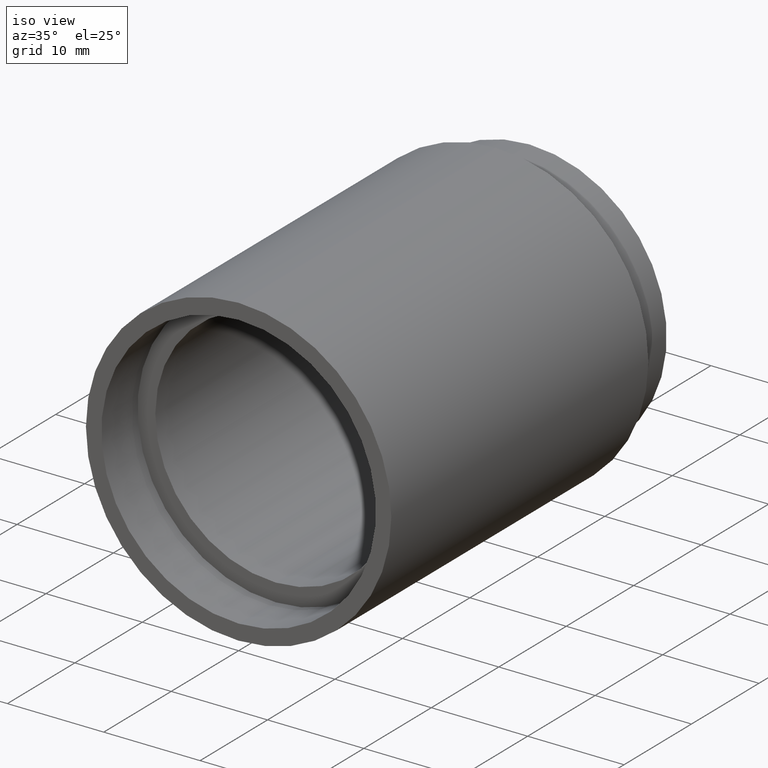
[diagram: clean part render]
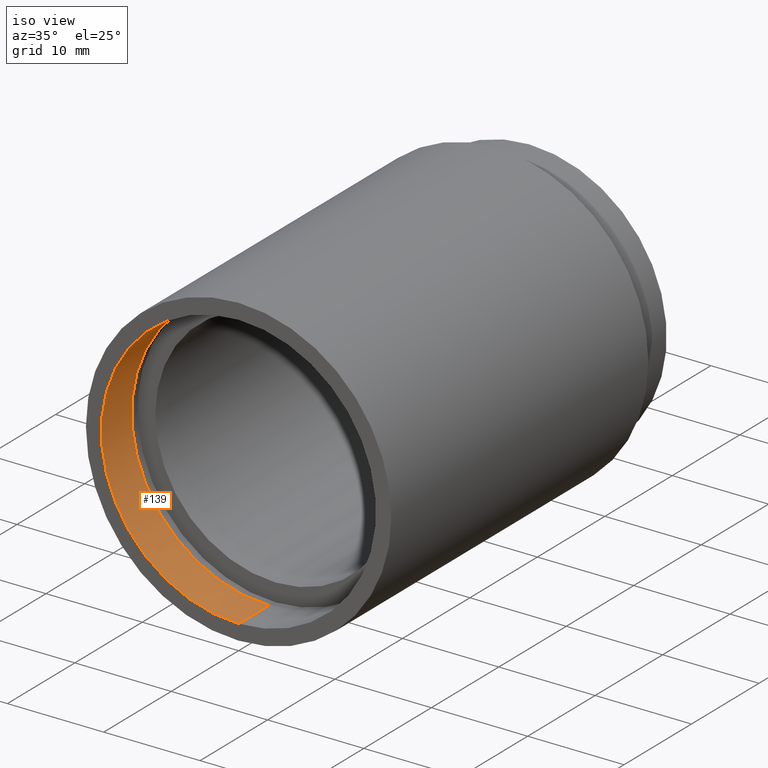
[diagram: same view with one face highlighted and labeled with its STEP entity id]
A machine part, iso view. The second image highlights one B-rep face of the part: STEP entity #139.
In plain terms, the highlighted cylindrical surface (partial cylindrical patch) has radius 14.25 mm, axis along (-0, 1, -0).
Its self-contained STEP definition (entity closure, byte-faithful):
#8 = VECTOR ( 'NONE', #460, 1000.000000000000000 ) ;
#16 = ORIENTED_EDGE ( 'NONE', *, *, #443, .F. ) ;
#22 = CARTESIAN_POINT ( 'NONE',  ( 0.0000000000000000000, 4.500000000000032000, 0.0000000000000000000 ) ) ;
#59 = CARTESIAN_POINT ( 'NONE',  ( 0.0000000000000000000, 2.775557561562891400E-014, 14.25000000000000000 ) ) ;
#78 = VERTEX_POINT ( 'NONE', #59 ) ;
#94 = ORIENTED_EDGE ( 'NONE', *, *, #154, .T. ) ;
#105 = DIRECTION ( 'NONE',  ( -0.0000000000000000000, 1.000000000000000000, -0.0000000000000000000 ) ) ;
#121 = EDGE_LOOP ( 'NONE', ( #16, #200, #94, #543 ) ) ;
#139 = ADVANCED_FACE ( 'NONE', ( #251 ), #242, .F. ) ;
#154 = EDGE_CURVE ( 'NONE', #308, #430, #495, .T. ) ;
#169 = DIRECTION ( 'NONE',  ( -0.0000000000000000000, 1.000000000000000000, -0.0000000000000000000 ) ) ;
#179 = CARTESIAN_POINT ( 'NONE',  ( 1.745121688784978200E-015, 4.500000000000032000, -14.25000000000000000 ) ) ;
#200 = ORIENTED_EDGE ( 'NONE', *, *, #293, .T. ) ;
#204 = LINE ( 'NONE', #417, #8 ) ;
#215 = DIRECTION ( 'NONE',  ( -0.0000000000000000000, 1.000000000000000000, -0.0000000000000000000 ) ) ;
#231 = LINE ( 'NONE', #514, #331 ) ;
#242 = CYLINDRICAL_SURFACE ( 'NONE', #507, 14.25000000000000000 ) ;
#251 = FACE_OUTER_BOUND ( 'NONE', #121, .T. ) ;
#271 = DIRECTION ( 'NONE',  ( 0.0000000000000000000, 0.0000000000000000000, 1.000000000000000000 ) ) ;
#293 = EDGE_CURVE ( 'NONE', #557, #308, #204, .T. ) ;
#308 = VERTEX_POINT ( 'NONE', #179 ) ;
#331 = VECTOR ( 'NONE', #215, 1000.000000000000000 ) ;
#368 = CARTESIAN_POINT ( 'NONE',  ( 0.0000000000000000000, 2.775557561562891400E-014, 0.0000000000000000000 ) ) ;
#388 = CARTESIAN_POINT ( 'NONE',  ( 0.0000000000000000000, 161.3761669434274500, 0.0000000000000000000 ) ) ;
#410 = EDGE_CURVE ( 'NONE', #78, #430, #231, .T. ) ;
#417 = CARTESIAN_POINT ( 'NONE',  ( 1.745121688784978200E-015, 161.3761669434274500, -14.25000000000000000 ) ) ;
#418 = DIRECTION ( 'NONE',  ( -0.0000000000000000000, 1.000000000000000000, -0.0000000000000000000 ) ) ;
#430 = VERTEX_POINT ( 'NONE', #503 ) ;
#443 = EDGE_CURVE ( 'NONE', #557, #78, #475, .T. ) ;
#455 = AXIS2_PLACEMENT_3D ( 'NONE', #368, #418, #271 ) ;
#460 = DIRECTION ( 'NONE',  ( -0.0000000000000000000, 1.000000000000000000, -0.0000000000000000000 ) ) ;
#475 = CIRCLE ( 'NONE', #455, 14.25000000000000000 ) ;
#495 = CIRCLE ( 'NONE', #550, 14.25000000000000000 ) ;
#503 = CARTESIAN_POINT ( 'NONE',  ( 0.0000000000000000000, 4.500000000000032000, 14.25000000000000000 ) ) ;
#507 = AXIS2_PLACEMENT_3D ( 'NONE', #388, #105, #544 ) ;
#514 = CARTESIAN_POINT ( 'NONE',  ( 0.0000000000000000000, 161.3761669434274500, 14.25000000000000000 ) ) ;
#543 = ORIENTED_EDGE ( 'NONE', *, *, #410, .F. ) ;
#544 = DIRECTION ( 'NONE',  ( 0.0000000000000000000, 0.0000000000000000000, 1.000000000000000000 ) ) ;
#549 = DIRECTION ( 'NONE',  ( 0.0000000000000000000, 0.0000000000000000000, 1.000000000000000000 ) ) ;
#550 = AXIS2_PLACEMENT_3D ( 'NONE', #22, #169, #549 ) ;
#557 = VERTEX_POINT ( 'NONE', #614 ) ;
#614 = CARTESIAN_POINT ( 'NONE',  ( 1.745121688784978200E-015, 2.775557561562891400E-014, -14.25000000000000000 ) ) ;